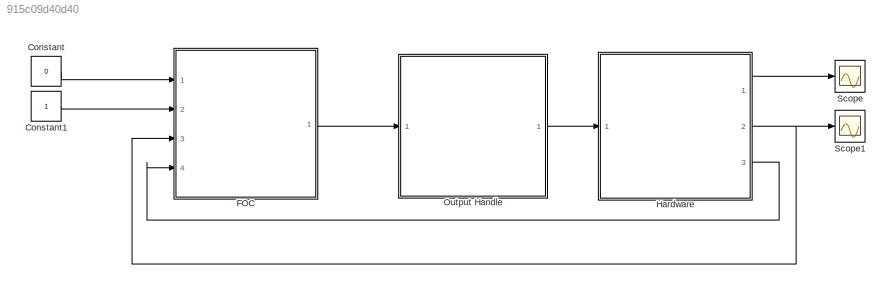
MODEL slx_915c09d40d40
KIND model
CONFIG AbsTol = auto
CONFIG EnableMultiTasking = off
CONFIG FixedStep = Ts
CONFIG MaxStep = auto
CONFIG MinStep = auto
CONFIG RelTol = 1e-3
CONFIG SampleTimeConstraint = Unconstrained
CONFIG SolverName = FixedStepAuto
CONFIG StartTime = 0.0
CONFIG StopTime = 0.5
BLOCK [Constant] Constant
  Value = 0
BLOCK [Constant] Constant1
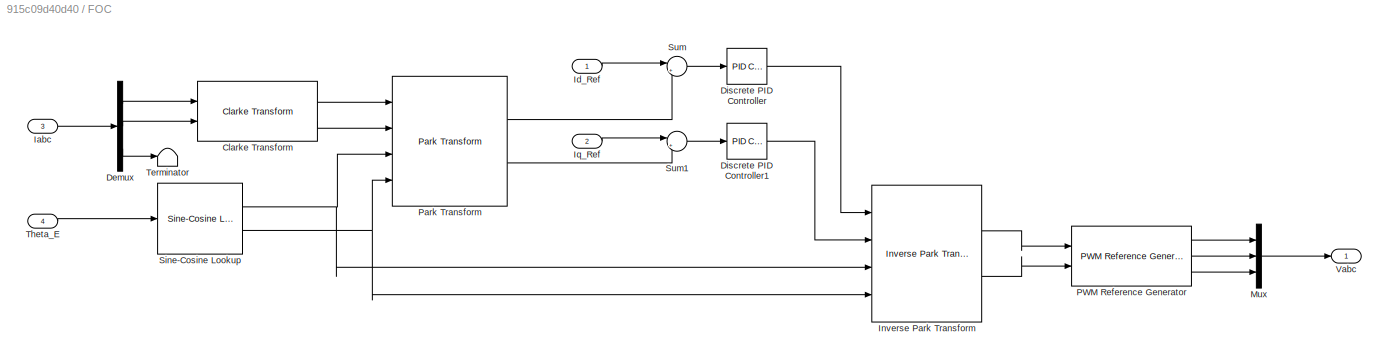
BLOCK [SubSystem] FOC
  Ports = [4, 1]
  RequestExecContextInheritance = off
BLOCK [Reference] FOC/Clarke Transform  REF=mcbcontrolslib/Clarke Transform
  Ports = [2, 2]
  SourceBlock = mcbcontrolslib/Clarke Transform
  SourceProductBaseCode = MT
  SourceType = Clarke Transform
BLOCK [Demux] FOC/Demux
  Outputs = 3
  Ports = [1, 3]
BLOCK [Reference] FOC/Discrete PID Controller  REF=slpidlib/PID Controller
  Ports = [1, 1]
  SourceBlock = slpidlib/PID Controller
  SourceProductBaseCode = SL
  SourceType = PID 1dof
BLOCK [Reference] FOC/Discrete PID Controller1  REF=slpidlib/PID Controller
  Ports = [1, 1]
  SourceBlock = slpidlib/PID Controller
  SourceProductBaseCode = SL
  SourceType = PID 1dof
BLOCK [Inport] FOC/Iabc
  Port = 3
BLOCK [Inport] FOC/Id_Ref
BLOCK [Reference] FOC/Inverse Park Transform  REF=mcbcontrolslib/Inverse Park Transform
  Ports = [4, 2]
  SourceBlock = mcbcontrolslib/Inverse Park Transform
  SourceProductBaseCode = MT
  SourceType = Inverse Park Transform
BLOCK [Inport] FOC/Iq_Ref
  Port = 2
BLOCK [Mux] FOC/Mux
  DisplayOption = bar
  Inputs = 3
  Ports = [3, 1]
BLOCK [Reference] FOC/PWM Reference Generator  REF=mcbcontrolslib/PWM Reference Generator
  Ports = [2, 3]
  SourceBlock = mcbcontrolslib/PWM Reference Generator
  SourceProductBaseCode = MT
  SourceType = PWM Modulation
BLOCK [Reference] FOC/Park Transform  REF=mcbcontrolslib/Park Transform
  Ports = [4, 2]
  SourceBlock = mcbcontrolslib/Park Transform
  SourceProductBaseCode = MT
  SourceType = Park Transform
BLOCK [Reference] FOC/Sine-Cosine Lookup  REF=mcbcontrolslib/Sine-Cosine Lookup
  Ports = [1, 2]
  SourceBlock = mcbcontrolslib/Sine-Cosine Lookup
  SourceProductBaseCode = MT
  SourceType = Sine-Cosine Lookup
BLOCK [Sum] FOC/Sum
  Inputs = |+-
  Ports = [2, 1]
BLOCK [Sum] FOC/Sum1
  Inputs = |+-
  Ports = [2, 1]
BLOCK [Terminator] FOC/Terminator
BLOCK [Inport] FOC/Theta_E
  Port = 4
BLOCK [Outport] FOC/Vabc
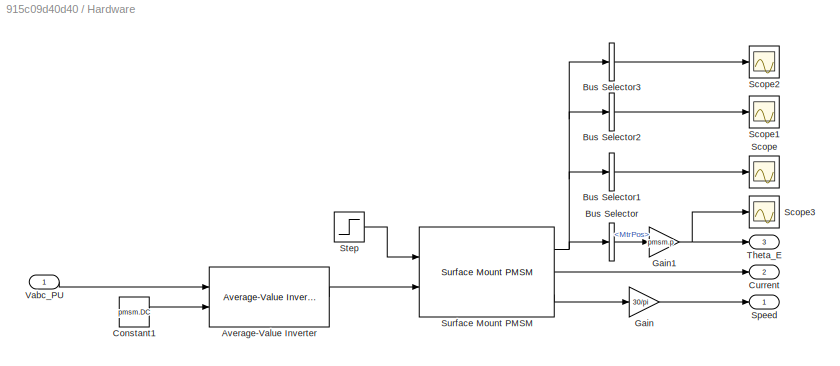
BLOCK [SubSystem] Hardware
  Ports = [1, 3]
  RequestExecContextInheritance = off
BLOCK [Reference] Hardware/Average-Value Inverter  REF=mcbplantlib/Average-Value Inverter
  Ports = [2, 1]
  SourceBlock = mcbplantlib/Average-Value Inverter
  SourceProductBaseCode = MT
  SourceType = Average Value Inverter
BLOCK [BusSelector] Hardware/Bus Selector
  OutputSignals = MtrPos
  Ports = [1, 1]
BLOCK [BusSelector] Hardware/Bus Selector1
  OutputAsBus = on
  OutputSignals = IdSync,IqSync
  Ports = [1, 1]
BLOCK [BusSelector] Hardware/Bus Selector2
  OutputAsBus = on
  OutputSignals = VdSync,VqSync
  Ports = [1, 1]
BLOCK [BusSelector] Hardware/Bus Selector3
  OutputAsBus = on
  OutputSignals = MtrTrq
  Ports = [1, 1]
BLOCK [Constant] Hardware/Constant1
  Value = pmsm.DC
BLOCK [Outport] Hardware/Current
  Port = 2
BLOCK [Gain] Hardware/Gain
  Gain = 30/pi
BLOCK [Gain] Hardware/Gain1
  Gain = pmsm.p
BLOCK [Scope] Hardware/Scope
  Floating = off
  NumInputPorts = 1
  Ports = [1]
  ScopeSpecificationString = Simulink.scopes.TimeScopeBlockCfg('CurrentConfiguration', extmgr.ConfigurationSet(extmgr.Configuration('Core','General UI',true,'FigureColor',[1 1 1]),extmgr.Configuration('Core','Source UI',true),extmgr.Configuration('Sources','WiredSimulink',true,'DataLoggingVariableName','ScopeData2'),extmgr.Configuration('Visuals','Time Domain',true,'SerializedDisplays',{struct('MinYLimReal','-0.15631','MaxYLi...<+1614ch>
BLOCK [Scope] Hardware/Scope1
  Floating = off
  NumInputPorts = 1
  Ports = [1]
  ScopeSpecificationString = Simulink.scopes.TimeScopeBlockCfg('CurrentConfiguration', extmgr.ConfigurationSet(extmgr.Configuration('Core','General UI',true,'FigureColor',[1 1 1]),extmgr.Configuration('Core','Source UI',true),extmgr.Configuration('Sources','WiredSimulink',true,'DataLoggingVariableName','ScopeData3'),extmgr.Configuration('Visuals','Time Domain',true,'SerializedDisplays',{struct('MinYLimReal','-1.41443','MaxYLi...<+1605ch>
BLOCK [Scope] Hardware/Scope2
  Floating = off
  NumInputPorts = 1
  Ports = [1]
  ScopeSpecificationString = Simulink.scopes.TimeScopeBlockCfg('CurrentConfiguration', extmgr.ConfigurationSet(extmgr.Configuration('Core','General UI',true,'FigureColor',[1 1 1]),extmgr.Configuration('Core','Source UI',true),extmgr.Configuration('Sources','WiredSimulink',true,'DataLoggingVariableName','ScopeData4'),extmgr.Configuration('Visuals','Time Domain',true,'SerializedDisplays',{struct('MinYLimReal','-0.02086','MaxYLi...<+1594ch>
BLOCK [Scope] Hardware/Scope3
  Floating = off
  NumInputPorts = 1
  Ports = [1]
  ScopeSpecificationString = Simulink.scopes.TimeScopeBlockCfg('CurrentConfiguration', extmgr.ConfigurationSet(extmgr.Configuration('Core','General UI',true,'FigureColor',[1 1 1]),extmgr.Configuration('Core','Source UI',true),extmgr.Configuration('Sources','WiredSimulink',true,'DataLoggingVariableName','ScopeData1'),extmgr.Configuration('Visuals','Time Domain',true,'SerializedDisplays',{struct('MinYLimReal','-27.48465','MaxYL...<+1561ch>
BLOCK [Outport] Hardware/Speed
BLOCK [Step] Hardware/Step
  After = 0.1*pmsm.T_rated
  SampleTime = 0
  Time = 0.2
BLOCK [Reference] Hardware/Surface Mount PMSM  REF=autolibpmsmexterior/Surface Mount PMSM
  Ports = [2, 3]
  SourceBlock = autolibpmsmexterior/Surface Mount PMSM
  SourceProductBaseCode = PW,DR,MT,VE
  SourceType = Surface Mount PMSM
BLOCK [Outport] Hardware/Theta_E
  Port = 3
BLOCK [Inport] Hardware/Vabc_PU
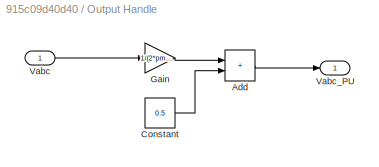
BLOCK [SubSystem] Output Handle
  Ports = [1, 1]
  RequestExecContextInheritance = off
BLOCK [Sum] Output Handle/Add
  IconShape = rectangular
  Ports = [2, 1]
BLOCK [Constant] Output Handle/Constant
  Value = 0.5
BLOCK [Gain] Output Handle/Gain
  Gain = 1/(2*pmsm.DC/sqrt(3))
BLOCK [Inport] Output Handle/Vabc
BLOCK [Outport] Output Handle/Vabc_PU
BLOCK [Scope] Scope
  Floating = off
  NumInputPorts = 1
  Ports = [1]
  ScopeSpecificationString = Simulink.scopes.TimeScopeBlockCfg('CurrentConfiguration', extmgr.ConfigurationSet(extmgr.Configuration('Core','General UI',true,'FigureColor',[1 1 1]),extmgr.Configuration('Core','Source UI',true),extmgr.Configuration('Sources','WiredSimulink',true),extmgr.Configuration('Visuals','Time Domain',true,'SerializedDisplays',{struct('MinYLimReal','-2479.72936','MaxYLimReal','22317.56426','YLabelReal',''...<+1584ch>
BLOCK [Scope] Scope1
  Floating = off
  NumInputPorts = 1
  Ports = [1]
  ScopeSpecificationString = Simulink.scopes.TimeScopeBlockCfg('CurrentConfiguration', extmgr.ConfigurationSet(extmgr.Configuration('Core','General UI',true,'FigureColor',[1 1 1]),extmgr.Configuration('Core','Source UI',true),extmgr.Configuration('Sources','WiredSimulink',true,'DataLoggingVariableName','ScopeData1'),extmgr.Configuration('Visuals','Time Domain',true,'SerializedDisplays',{struct('MinYLimReal','-1.21505','MaxYLi...<+1627ch>
LINE Constant1:1 -> FOC:2
LINE Constant:1 -> FOC:1
LINE FOC/Clarke Transform:1 -> FOC/Park Transform:1
LINE FOC/Clarke Transform:2 -> FOC/Park Transform:2
LINE FOC/Demux:1 -> FOC/Clarke Transform:1
LINE FOC/Demux:2 -> FOC/Clarke Transform:2
LINE FOC/Demux:3 -> FOC/Terminator:1
LINE FOC/Discrete PID Controller1:1 -> FOC/Inverse Park Transform:2
LINE FOC/Discrete PID Controller:1 -> FOC/Inverse Park Transform:1
LINE FOC/Iabc:1 -> FOC/Demux:1
LINE FOC/Id_Ref:1 -> FOC/Sum:1
LINE FOC/Inverse Park Transform:1 -> FOC/PWM Reference Generator:1
LINE FOC/Inverse Park Transform:2 -> FOC/PWM Reference Generator:2
LINE FOC/Iq_Ref:1 -> FOC/Sum1:1
LINE FOC/Mux:1 -> FOC/Vabc:1
LINE FOC/PWM Reference Generator:1 -> FOC/Mux:1
LINE FOC/PWM Reference Generator:2 -> FOC/Mux:2
LINE FOC/PWM Reference Generator:3 -> FOC/Mux:3
LINE FOC/Park Transform:1 -> FOC/Sum:2
LINE FOC/Park Transform:2 -> FOC/Sum1:2
NET FOC/Sine-Cosine Lookup:1 -> FOC/Inverse Park Transform:3, FOC/Park Transform:3
NET FOC/Sine-Cosine Lookup:2 -> FOC/Inverse Park Transform:4, FOC/Park Transform:4
LINE FOC/Sum1:1 -> FOC/Discrete PID Controller1:1
LINE FOC/Sum:1 -> FOC/Discrete PID Controller:1
LINE FOC/Theta_E:1 -> FOC/Sine-Cosine Lookup:1
LINE FOC:1 -> Output Handle:1
LINE Hardware/Average-Value Inverter:1 -> Hardware/Surface Mount PMSM:2
LINE Hardware/Bus Selector1:1 -> Hardware/Scope:1
LINE Hardware/Bus Selector2:1 -> Hardware/Scope1:1
LINE Hardware/Bus Selector3:1 -> Hardware/Scope2:1
LINE Hardware/Bus Selector:1 -> Hardware/Gain1:1
LINE Hardware/Constant1:1 -> Hardware/Average-Value Inverter:2
NET Hardware/Gain1:1 -> Hardware/Scope3:1, Hardware/Theta_E:1
LINE Hardware/Gain:1 -> Hardware/Speed:1
LINE Hardware/Step:1 -> Hardware/Surface Mount PMSM:1
NET Hardware/Surface Mount PMSM:1 -> Hardware/Bus Selector1:1, Hardware/Bus Selector2:1, Hardware/Bus Selector3:1, Hardware/Bus Selector:1
LINE Hardware/Surface Mount PMSM:2 -> Hardware/Current:1
LINE Hardware/Surface Mount PMSM:3 -> Hardware/Gain:1
LINE Hardware/Vabc_PU:1 -> Hardware/Average-Value Inverter:1
LINE Hardware:1 -> Scope:1
NET Hardware:2 -> FOC:3, Scope1:1
LINE Hardware:3 -> FOC:4
LINE Output Handle/Add:1 -> Output Handle/Vabc_PU:1
LINE Output Handle/Constant:1 -> Output Handle/Add:2
LINE Output Handle/Gain:1 -> Output Handle/Add:1
LINE Output Handle/Vabc:1 -> Output Handle/Gain:1
LINE Output Handle:1 -> Hardware:1
note: NET lines group one-source signal fan-out (src -> all destinations, sorted); 1:1 wires keep LINE
